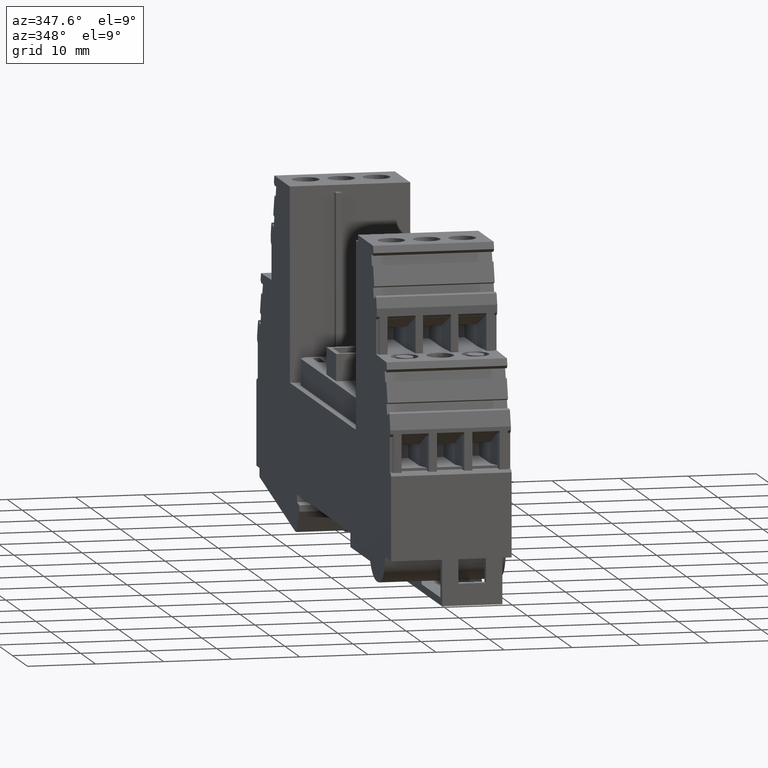
[diagram: clean part render]
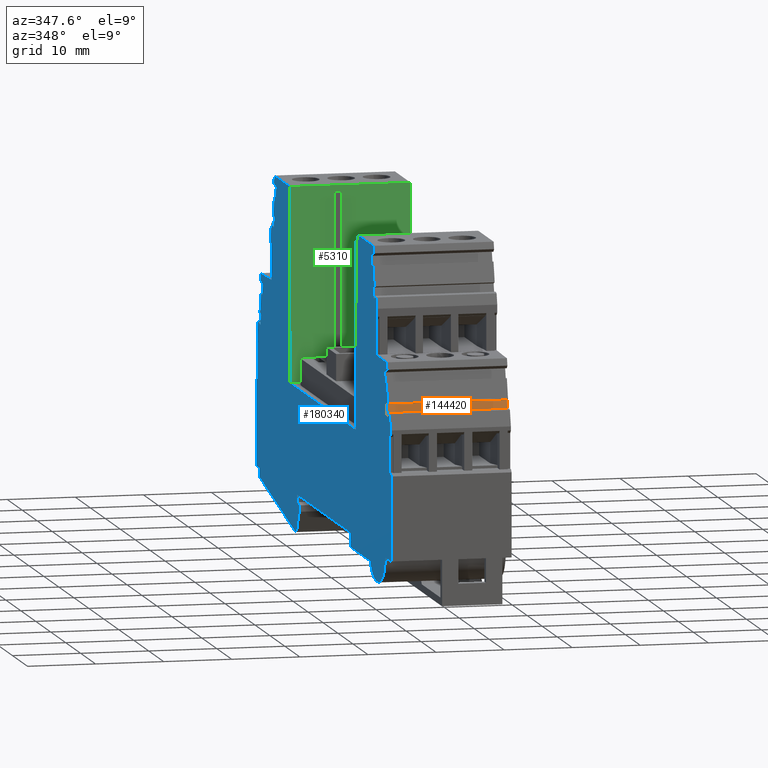
[diagram: same view with three faces highlighted in distinct colors, each labeled with its STEP entity id]
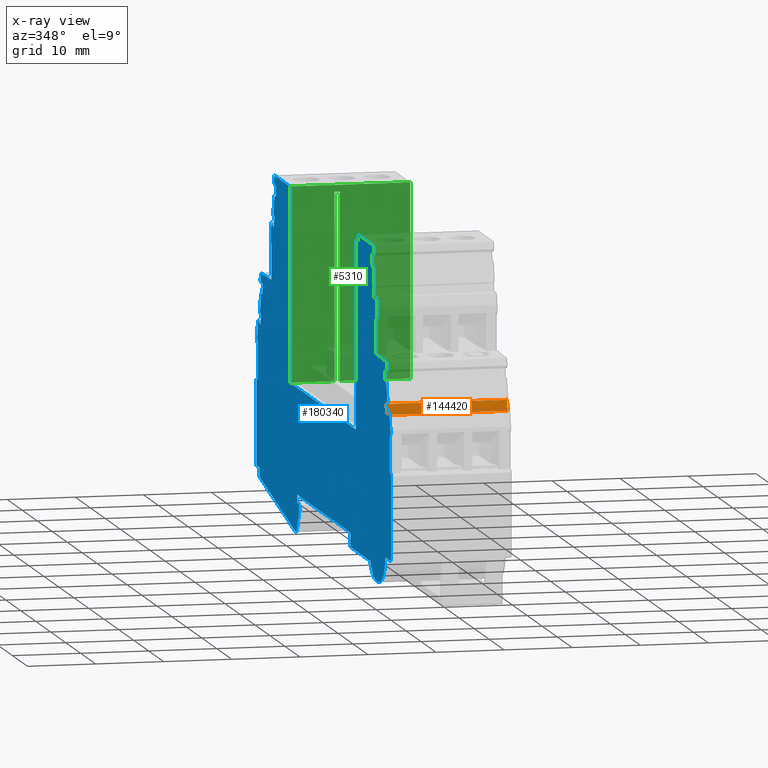
[diagram: x-ray of the same camera — body ghosted, the three highlighted faces saturated]
A machine part, auxiliary view with three faces highlighted in distinct colors.
The next image is the same camera in x-ray (body ghosted, the three faces saturated) — at least one of them is partly hidden behind the body in this view.
Their STEP definitions:

[orange] entity #144420 — the highlighted planar face has unit normal (0, 0.9646, -0.2639).
#103300=CARTESIAN_POINT('',(27.0221223307202,38.2103092298248,-31.3));
#103310=VERTEX_POINT('',#103300);
#103340=CARTESIAN_POINT('',(11.2617251630526,-19.3999999999998,-31.3));
#103350=DIRECTION('',(-0.263873049965258,-0.96455741845783,0.));
#103360=VECTOR('',#103350,1.);
#103370=LINE('',#103340,#103360);
#103380=CARTESIAN_POINT('',(27.443496850926,39.7505950584349,-31.3));
#103390=VERTEX_POINT('',#103380);
#103400=EDGE_CURVE('',#103390,#103310,#103370,.T.);
#105300=CARTESIAN_POINT('',(27.4434968509259,39.7505950584349,-49.));
#105310=VERTEX_POINT('',#105300);
#105430=CARTESIAN_POINT('',(27.4434968509259,39.7505950584348,
2.25000000009247));
#105440=DIRECTION('',(1.22464679914735E-16,7.51478429024817E-19,1.));
#105450=VECTOR('',#105440,1.);
#105460=LINE('',#105430,#105450);
#105470=EDGE_CURVE('',#105310,#103390,#105460,.T.);
#106060=CARTESIAN_POINT('',(27.0221223307201,38.2103092298248,-49.));
#106070=VERTEX_POINT('',#106060);
#106100=CARTESIAN_POINT('',(27.0221223307201,38.2103092298247,
2.25000000009247));
#106110=DIRECTION('',(1.22464679914735E-16,7.51478429024835E-19,1.));
#106120=VECTOR('',#106110,1.);
#106130=LINE('',#106100,#106120);
#106140=EDGE_CURVE('',#106070,#103310,#106130,.T.);
#144260=CARTESIAN_POINT('',(27.3467788102594,39.3970534457697,-49.));
#144270=DIRECTION('',(0.964557418457829,-0.263873049965258,
-1.17925920605772E-16));
#144280=DIRECTION('',(0.263873049965258,0.96455741845783,
-2.3740895734514E-21));
#144290=AXIS2_PLACEMENT_3D('',#144260,#144270,#144280);
#144300=PLANE('',#144290);
#144310=CARTESIAN_POINT('',(22.2644370800071,20.8191410000002,-49.));
#144320=DIRECTION('',(0.263873049965258,0.96455741845783,
-2.3740895734514E-21));
#144330=VECTOR('',#144320,1.);
#144340=LINE('',#144310,#144330);
#144350=EDGE_CURVE('',#106070,#105310,#144340,.T.);
#144360=ORIENTED_EDGE('',*,*,#144350,.F.);
#144370=ORIENTED_EDGE('',*,*,#105470,.F.);
#144380=ORIENTED_EDGE('',*,*,#103400,.F.);
#144390=ORIENTED_EDGE('',*,*,#106140,.T.);
#144400=EDGE_LOOP('',(#144390,#144380,#144370,#144360));
#144410=FACE_OUTER_BOUND('',#144400,.T.);
#144420=ADVANCED_FACE('',(#144410),#144300,.F.);

[blue] entity #180340 — the highlighted planar face has unit normal (-1, 0, 0).
#1220=CARTESIAN_POINT('',(37.1194199786441,54.8713243594611,-49.));
#1230=DIRECTION('',(0.967267752775637,0.25375794458572,
-8.70259500516748E-21));
#1240=VECTOR('',#1230,1.);
#1250=LINE('',#1220,#1240);
#1260=CARTESIAN_POINT('',(34.3699411001981,54.1500120786843,-49.));
#1270=VERTEX_POINT('',#1260);
#1280=CARTESIAN_POINT('',(34.9619005354865,54.3053097293563,-49.));
#1290=VERTEX_POINT('',#1280);
#1300=EDGE_CURVE('',#1270,#1290,#1250,.T.);
#1690=CARTESIAN_POINT('',(25.2516465941026,20.8191410000002,-49.));
#1700=DIRECTION('',(0.263873049965441,0.964557418457779,
-2.3740895734514E-21));
#1710=VECTOR('',#1700,1.);
#1720=LINE('',#1690,#1710);
#1730=CARTESIAN_POINT('',(33.9413512925595,52.5833516012792,-49.));
#1740=VERTEX_POINT('',#1730);
#1750=EDGE_CURVE('',#1740,#1270,#1720,.T.);
#2070=CARTESIAN_POINT('',(25.8011213998911,20.8191410000002,-49.));
#2080=DIRECTION('',(-0.263873049960418,-0.964557418459154,
2.37408957340826E-21));
#2090=VECTOR('',#2080,1.);
#2100=LINE('',#2070,#2090);
#2110=CARTESIAN_POINT('',(34.8900458929702,54.0426533932878,-49.));
#2120=VERTEX_POINT('',#2110);
#2130=EDGE_CURVE('',#1290,#2120,#2100,.T.);
#2450=CARTESIAN_POINT('',(26.9104384600794,20.8191410000002,-49.));
#2460=DIRECTION('',(0.263873049965295,0.964557418457819,
-2.3740895734514E-21));
#2470=VECTOR('',#2460,1.);
#2480=LINE('',#2450,#2470);
#2490=CARTESIAN_POINT('',(37.1697448515453,58.3208490729604,-49.));
#2500=VERTEX_POINT('',#2490);
#2510=CARTESIAN_POINT('',(37.5911193717511,59.8611349015705,-49.));
#2520=VERTEX_POINT('',#2510);
#2530=EDGE_CURVE('',#2500,#2520,#2480,.T.);
#2920=CARTESIAN_POINT('',(26.1328797729012,20.8191410000002,-49.));
#2930=DIRECTION('',(0.263873049965391,0.964557418457793,
-2.3740895734514E-21));
#2940=VECTOR('',#2930,1.);
#2950=LINE('',#2920,#2940);
#2960=CARTESIAN_POINT('',(35.6373932124443,55.5617907254851,-49.));
#2970=VERTEX_POINT('',#2960);
#2980=CARTESIAN_POINT('',(36.4290123623405,58.4554629808585,-49.));
#2990=VERTEX_POINT('',#2980);
#3000=EDGE_CURVE('',#2970,#2990,#2950,.T.);
#3390=CARTESIAN_POINT('',(26.9104384600803,20.8191410000002,-49.));
#3400=DIRECTION('',(0.263873049965258,0.96455741845783,
-2.3740895734514E-21));
#3410=VECTOR('',#3400,1.);
#3420=LINE('',#3390,#3410);
#3430=CARTESIAN_POINT('',(35.9221223307201,53.7603092298248,-49.));
#3440=VERTEX_POINT('',#3430);
#3450=CARTESIAN_POINT('',(36.3434968509261,55.3005950584348,-49.));
#3460=VERTEX_POINT('',#3450);
#3470=EDGE_CURVE('',#3440,#3460,#3420,.T.);
#3860=CARTESIAN_POINT('',(37.1194199786441,55.0135723780818,-49.));
#3870=DIRECTION('',(-0.937888934611864,0.346935651573346,
8.43827113469231E-21));
#3880=VECTOR('',#3870,1.);
#3890=LINE('',#3860,#3880);
#3900=EDGE_CURVE('',#3460,#2970,#3890,.T.);
#4150=CARTESIAN_POINT('',(37.1194199786441,58.3299946523759,-49.));
#4160=DIRECTION('',(0.983885037933486,-0.178802215116658,
-8.85210221492495E-21));
#4170=VECTOR('',#4160,1.);
#4180=LINE('',#4150,#4170);
#4190=EDGE_CURVE('',#2990,#2500,#4180,.T.);
#4440=CARTESIAN_POINT('',(37.1194199786441,59.9901772531652,-49.));
#4450=DIRECTION('',(-0.964557418457813,0.26387304996532,
8.67820988344551E-21));
#4460=VECTOR('',#4450,1.);
#4470=LINE('',#4440,#4460);
#4480=CARTESIAN_POINT('',(36.5590429340016,60.1434790650341,-49.));
#4490=VERTEX_POINT('',#4480);
#4500=EDGE_CURVE('',#2520,#4490,#4470,.T.);
#4990=CARTESIAN_POINT('',(91.941351295551,32.856274052444,-49.));
#5000=VERTEX_POINT('',#4990);
#5030=CARTESIAN_POINT('',(91.8993336040401,20.8191410000002,-49.));
#5040=DIRECTION('',(-0.00349065141522385,-0.99999390765779,
3.140570484076E-23));
#5050=VECTOR('',#5040,1.);
#5060=LINE('',#5030,#5050);
#5070=CARTESIAN_POINT('',(92.0408354669765,61.356274052444,-49.));
#5080=VERTEX_POINT('',#5070);
#5090=EDGE_CURVE('',#5080,#5000,#5060,.T.);
#5440=CARTESIAN_POINT('',(63.5407585981961,20.8191410000002,-49.));
#5450=DIRECTION('',(-0.703394702810296,-0.710799473873198,
6.32850543166678E-21));
#5460=VECTOR('',#5450,1.);
#5470=LINE('',#5440,#5460);
#5480=CARTESIAN_POINT('',(102.62598572191,60.3158258125998,-49.));
#5490=VERTEX_POINT('',#5480);
#5500=CARTESIAN_POINT('',(102.195514293636,59.8808227289656,-49.));
#5510=VERTEX_POINT('',#5500);
#5520=EDGE_CURVE('',#5490,#5510,#5470,.T.);
#6360=CARTESIAN_POINT('',(37.1194199786441,61.356274052444,-49.));
#6370=DIRECTION('',(1.,-1.20996962449382E-16,-8.99708997865547E-21));
#6380=VECTOR('',#6370,1.);
#6390=LINE('',#6360,#6380);
#6400=CARTESIAN_POINT('',(102.341351292559,61.3562740524441,-49.));
#6410=VERTEX_POINT('',#6400);
#6420=EDGE_CURVE('',#5080,#6410,#6390,.T.);
#13440=CARTESIAN_POINT('',(47.9413513179598,32.856274052444,-49.));
#13450=VERTEX_POINT('',#13440);
#13480=CARTESIAN_POINT('',(37.1194199786441,32.856274052444,-49.));
#13490=DIRECTION('',(-1.,1.20996962449382E-16,8.99708997865547E-21));
#13500=VECTOR('',#13490,1.);
#13510=LINE('',#13480,#13500);
#13520=EDGE_CURVE('',#5000,#13450,#13510,.T.);
#34570=CARTESIAN_POINT('',(46.6453578198244,60.356274052444,-49.));
#34580=VERTEX_POINT('',#34570);
#34610=CARTESIAN_POINT('',(37.1194199786441,60.356274052444,-49.));
#34620=DIRECTION('',(-1.,1.20996962449382E-16,8.99708997865547E-21));
#34630=VECTOR('',#34620,1.);
#34640=LINE('',#34610,#34630);
#34650=CARTESIAN_POINT('',(47.8453578192159,60.356274052444,-49.));
#34660=VERTEX_POINT('',#34650);
#34670=EDGE_CURVE('',#34660,#34580,#34640,.T.);
#35480=CARTESIAN_POINT('',(37.1194199786441,61.356274052444,-49.));
#35490=DIRECTION('',(1.,-1.20996962449382E-16,-8.99708997865547E-21));
#35500=VECTOR('',#35490,1.);
#35510=LINE('',#35480,#35500);
#35520=CARTESIAN_POINT('',(36.3413512925594,61.356274052444,-49.));
#35530=VERTEX_POINT('',#35520);
#35540=CARTESIAN_POINT('',(46.6418671471428,61.356274052444,-49.));
#35550=VERTEX_POINT('',#35540);
#35560=EDGE_CURVE('',#35530,#35550,#35510,.T.);
#41620=CARTESIAN_POINT('',(75.1419439869227,20.8191410000002,-49.));
#41630=DIRECTION('',(-0.703394702810296,0.710799473873198,
6.32850543170376E-21));
#41640=VECTOR('',#41630,1.);
#41650=LINE('',#41620,#41640);
#41660=CARTESIAN_POINT('',(36.4871882914824,59.8808227289657,-49.));
#41670=VERTEX_POINT('',#41660);
#41680=CARTESIAN_POINT('',(36.0567168632087,60.3158258125999,-49.));
#41690=VERTEX_POINT('',#41680);
#41700=EDGE_CURVE('',#41670,#41690,#41650,.T.);
#42090=CARTESIAN_POINT('',(25.2516465941056,20.8191410000002,-49.));
#42100=DIRECTION('',(0.26387304996536,0.964557418457802,
-2.3740895734514E-21));
#42110=VECTOR('',#42100,1.);
#42120=LINE('',#42090,#42110);
#42130=EDGE_CURVE('',#41690,#35530,#42120,.T.);
#42380=CARTESIAN_POINT('',(46.7833690100792,20.8191410000002,-49.));
#42390=DIRECTION('',(-0.00349065141522361,0.99999390765779,
3.14057048929527E-23));
#42400=VECTOR('',#42390,1.);
#42410=LINE('',#42380,#42400);
#42420=EDGE_CURVE('',#34580,#35550,#42410,.T.);
#43340=CARTESIAN_POINT('',(47.9833690094707,20.8191410000002,-49.));
#43350=DIRECTION('',(-0.00349065141522361,0.99999390765779,
3.14057048929527E-23));
#43360=VECTOR('',#43350,1.);
#43370=LINE('',#43340,#43360);
#43380=EDGE_CURVE('',#13450,#34660,#43370,.T.);
#43770=CARTESIAN_POINT('',(113.431055991013,20.8191410000002,-49.));
#43780=DIRECTION('',(0.26387304996536,-0.964557418457802,
-2.37408957350071E-21));
#43790=VECTOR('',#43780,1.);
#43800=LINE('',#43770,#43790);
#43810=EDGE_CURVE('',#6410,#5490,#43800,.T.);
#44060=CARTESIAN_POINT('',(112.881581185625,20.8191410000002,-49.));
#44070=DIRECTION('',(-0.26387304997026,0.964557418456461,
2.37408957355001E-21));
#44080=VECTOR('',#44070,1.);
#44090=LINE('',#44060,#44080);
#44100=CARTESIAN_POINT('',(102.123659651118,60.1434790650333,-49.));
#44110=VERTEX_POINT('',#44100);
#44120=EDGE_CURVE('',#5510,#44110,#44090,.T.);
#44440=CARTESIAN_POINT('',(111.772264125039,20.8191410000002,-49.));
#44450=DIRECTION('',(0.263873049965258,-0.96455741845783,
-2.37408957350071E-21));
#44460=VECTOR('',#44450,1.);
#44470=LINE('',#44440,#44460);
#44480=CARTESIAN_POINT('',(102.339205734193,55.3005950584348,-49.));
#44490=VERTEX_POINT('',#44480);
#44500=CARTESIAN_POINT('',(102.760580254399,53.7603092298247,-49.));
#44510=VERTEX_POINT('',#44500);
#44520=EDGE_CURVE('',#44490,#44510,#44470,.T.);
#44910=CARTESIAN_POINT('',(112.549822812218,20.8191410000002,-49.));
#44920=DIRECTION('',(0.263873049965391,-0.964557418457793,
-2.37408957350687E-21));
#44930=VECTOR('',#44920,1.);
#44940=LINE('',#44910,#44930);
#44950=CARTESIAN_POINT('',(102.253690222779,58.4554629808585,-49.));
#44960=VERTEX_POINT('',#44950);
#44970=CARTESIAN_POINT('',(103.045309372675,55.5617907254851,-49.));
#44980=VERTEX_POINT('',#44970);
#44990=EDGE_CURVE('',#44960,#44980,#44940,.T.);
#45380=CARTESIAN_POINT('',(111.772264125039,20.8191410000002,-49.));
#45390=DIRECTION('',(0.263873049965295,-0.964557418457819,
-2.37408957350071E-21));
#45400=VECTOR('',#45390,1.);
#45410=LINE('',#45380,#45400);
#45420=CARTESIAN_POINT('',(101.091583213368,59.8611349015706,-49.));
#45430=VERTEX_POINT('',#45420);
#45440=CARTESIAN_POINT('',(101.512957733574,58.3208490729604,-49.));
#45450=VERTEX_POINT('',#45440);
#45460=EDGE_CURVE('',#45430,#45450,#45410,.T.);
#45850=CARTESIAN_POINT('',(37.1194199786441,46.6185599376743,-49.));
#45860=DIRECTION('',(0.983885037933486,0.178802215116658,
-8.85210221492495E-21));
#45870=VECTOR('',#45860,1.);
#45880=LINE('',#45850,#45870);
#45890=EDGE_CURVE('',#45450,#44960,#45880,.T.);
#46140=CARTESIAN_POINT('',(37.1194199786441,31.175063738525,-49.));
#46150=DIRECTION('',(-0.937888934611864,-0.346935651573346,
8.43827113466766E-21));
#46160=VECTOR('',#46150,1.);
#46170=LINE('',#46140,#46160);
#46180=EDGE_CURVE('',#44980,#44490,#46170,.T.);
#46430=CARTESIAN_POINT('',(37.1194199786441,35.8029198263722,-49.));
#46440=DIRECTION('',(0.964557418457773,0.263873049965463,
-8.67820988342086E-21));
#46450=VECTOR('',#46440,1.);
#46460=LINE('',#46430,#46450);
#46470=CARTESIAN_POINT('',(103.792656692149,54.0426533932878,-49.));
#46480=VERTEX_POINT('',#46470);
#46490=EDGE_CURVE('',#44510,#46480,#46460,.T.);
#48320=CARTESIAN_POINT('',(104.277994216089,45.9062694805044,-49.));
#48330=VERTEX_POINT('',#48320);
#48360=CARTESIAN_POINT('',(8.89999997864408,47.7899600439844,-49.));
#48370=DIRECTION('',(-0.999805030924262,0.019745889155346,0.));
#48380=VECTOR('',#48370,1.);
#48390=LINE('',#48360,#48380);
#48400=CARTESIAN_POINT('',(109.341351675772,45.8062694884456,-49.));
#48410=VERTEX_POINT('',#48400);
#48420=EDGE_CURVE('',#48410,#48330,#48390,.T.);
#55280=CARTESIAN_POINT('',(111.241350077639,45.8062694884456,-49.));
#55290=VERTEX_POINT('',#55280);
#55390=CARTESIAN_POINT('',(8.89999997864408,45.8062694884456,-49.));
#55400=DIRECTION('',(-1.,1.18859577327523E-16,8.99708997865547E-21));
#55410=VECTOR('',#55400,1.);
#55420=LINE('',#55390,#55410);
#55430=EDGE_CURVE('',#55290,#48410,#55420,.T.);
#56570=CARTESIAN_POINT('',(104.730509391891,51.3969100594458,-49.));
#56580=VERTEX_POINT('',#56570);
#56610=CARTESIAN_POINT('',(129.782702606475,51.3969100594458,
-48.9999999999999));
#56620=DIRECTION('',(1.,2.46519032881566E-32,-8.99708997865547E-21));
#56630=VECTOR('',#56620,1.);
#56640=LINE('',#56610,#56630);
#56650=CARTESIAN_POINT('',(104.741351292559,51.3969100594458,-49.));
#56660=VERTEX_POINT('',#56650);
#56670=EDGE_CURVE('',#56580,#56660,#56640,.T.);
#62050=CARTESIAN_POINT('',(104.277994216089,50.9969054875639,-49.));
#62060=VERTEX_POINT('',#62050);
#62090=CARTESIAN_POINT('',(104.277994216089,-19.409363992998,
-48.9999999999999));
#62100=DIRECTION('',(2.46519032881566E-32,-1.,-2.60974393670053E-32));
#62110=VECTOR('',#62100,1.);
#62120=LINE('',#62090,#62110);
#62130=EDGE_CURVE('',#62060,#48330,#62120,.T.);
#71870=CARTESIAN_POINT('',(37.1194199786441,-6.9693864747734,-49.));
#71880=DIRECTION('',(0.756961995471646,0.65345890261866,
-6.81045518365729E-21));
#71890=VECTOR('',#71880,1.);
#71900=LINE('',#71870,#71890);
#71910=CARTESIAN_POINT('',(104.741351292559,51.4062694943389,-49.));
#71920=VERTEX_POINT('',#71910);
#71930=EDGE_CURVE('',#56580,#71920,#71900,.T.);
#72250=CARTESIAN_POINT('',(37.1194199786441,71.7778552291985,-49.));
#72260=DIRECTION('',(0.967267752775637,-0.25375794458572,
-8.70259500516748E-21));
#72270=VECTOR('',#72260,1.);
#72280=LINE('',#72250,#72270);
#72290=CARTESIAN_POINT('',(103.720802049632,54.3053097293565,-49.));
#72300=VERTEX_POINT('',#72290);
#72310=CARTESIAN_POINT('',(104.312761484921,54.1500120786843,-49.));
#72320=VERTEX_POINT('',#72310);
#72330=EDGE_CURVE('',#72300,#72320,#72280,.T.);
#72720=CARTESIAN_POINT('',(113.431055991016,20.8191410000002,-49.));
#72730=DIRECTION('',(0.263873049965441,-0.964557418457779,
-2.37408957350687E-21));
#72740=VECTOR('',#72730,1.);
#72750=LINE('',#72720,#72740);
#72760=CARTESIAN_POINT('',(104.635023547933,52.9720203754523,-49.));
#72770=VERTEX_POINT('',#72760);
#72780=EDGE_CURVE('',#72320,#72770,#72750,.T.);
#73100=CARTESIAN_POINT('',(101.741351292559,52.180401225556,-49.));
#73110=DIRECTION('',(8.99708997865547E-21,-2.60974393670053E-32,1.));
#73120=DIRECTION('',(1.,-1.20996962449382E-16,-8.99708997865547E-21));
#73130=AXIS2_PLACEMENT_3D('',#73100,#73110,#73120);
#73140=CIRCLE('',#73130,3.);
#73150=CARTESIAN_POINT('',(104.741351292559,52.180401225556,-49.));
#73160=VERTEX_POINT('',#73150);
#73170=EDGE_CURVE('',#73160,#72770,#73140,.T.);
#73500=CARTESIAN_POINT('',(104.741351292559,20.8191410000002,-49.));
#73510=DIRECTION('',(1.20996962449382E-16,1.,2.6096350746447E-32));
#73520=VECTOR('',#73510,1.);
#73530=LINE('',#73500,#73520);
#73540=EDGE_CURVE('',#71920,#73160,#73530,.T.);
#73760=CARTESIAN_POINT('',(129.782702606475,73.0144821659879,
-48.9999999999999));
#73770=DIRECTION('',(-0.756958310160381,-0.653463171631838,
8.32735372689133E-17));
#73780=VECTOR('',#73770,1.);
#73790=LINE('',#73760,#73780);
#73800=EDGE_CURVE('',#56660,#62060,#73790,.T.);
#74120=CARTESIAN_POINT('',(87.8287660893938,20.8191410000002,-49.));
#74130=DIRECTION('',(-0.703394702810296,-0.710799473873198,
6.32850543166678E-21));
#74140=VECTOR('',#74130,1.);
#74150=LINE('',#74120,#74140);
#74160=CARTESIAN_POINT('',(111.525986247668,44.7658263438923,-49.));
#74170=VERTEX_POINT('',#74160);
#74180=CARTESIAN_POINT('',(111.095514293636,44.3308227289657,-49.));
#74190=VERTEX_POINT('',#74180);
#74200=EDGE_CURVE('',#74170,#74190,#74150,.T.);
#74590=CARTESIAN_POINT('',(117.527582565612,20.8191410000002,-49.));
#74600=DIRECTION('',(-0.26387304997026,0.964557418456461,
2.37408957355001E-21));
#74610=VECTOR('',#74600,1.);
#74620=LINE('',#74590,#74610);
#74630=CARTESIAN_POINT('',(111.023659651118,44.5934790650334,-49.));
#74640=VERTEX_POINT('',#74630);
#74650=EDGE_CURVE('',#74190,#74640,#74620,.T.);
#74970=CARTESIAN_POINT('',(116.418265505112,20.8191410000002,-49.));
#74980=DIRECTION('',(0.263873049965258,-0.96455741845783,
-2.37408957350071E-21));
#74990=VECTOR('',#74980,1.);
#75000=LINE('',#74970,#74990);
#75010=CARTESIAN_POINT('',(111.239205734193,39.7505950584346,-49.));
#75020=VERTEX_POINT('',#75010);
#75030=CARTESIAN_POINT('',(111.660580254399,38.2103092298247,-49.));
#75040=VERTEX_POINT('',#75030);
#75050=EDGE_CURVE('',#75020,#75040,#75000,.T.);
#75440=CARTESIAN_POINT('',(117.195824192289,20.8191410000002,-49.));
#75450=DIRECTION('',(0.263873049965391,-0.964557418457793,
-2.37408957350687E-21));
#75460=VECTOR('',#75450,1.);
#75470=LINE('',#75440,#75460);
#75480=CARTESIAN_POINT('',(111.153690222778,42.9054629808585,-49.));
#75490=VERTEX_POINT('',#75480);
#75500=CARTESIAN_POINT('',(111.945309372675,40.0117907254848,-49.));
#75510=VERTEX_POINT('',#75500);
#75520=EDGE_CURVE('',#75490,#75510,#75470,.T.);
#75910=CARTESIAN_POINT('',(116.418265505112,20.8191410000002,-49.));
#75920=DIRECTION('',(0.263873049965295,-0.964557418457819,
-2.37408957350071E-21));
#75930=VECTOR('',#75920,1.);
#75940=LINE('',#75910,#75930);
#75950=CARTESIAN_POINT('',(109.991583213368,44.3111349015705,-49.));
#75960=VERTEX_POINT('',#75950);
#75970=CARTESIAN_POINT('',(110.412957733574,42.7708490729604,-49.));
#75980=VERTEX_POINT('',#75970);
#75990=EDGE_CURVE('',#75960,#75980,#75940,.T.);
#76380=CARTESIAN_POINT('',(37.1194199786441,29.4511558170865,-49.));
#76390=DIRECTION('',(0.983885037933486,0.178802215116658,
-8.85210221492495E-21));
#76400=VECTOR('',#76390,1.);
#76410=LINE('',#76380,#76400);
#76420=EDGE_CURVE('',#75980,#75490,#76410,.T.);
#76670=CARTESIAN_POINT('',(37.1194199786441,12.332853770955,-49.));
#76680=DIRECTION('',(-0.937888934611864,-0.346935651573346,
8.43827113466766E-21));
#76690=VECTOR('',#76680,1.);
#76700=LINE('',#76670,#76690);
#76710=EDGE_CURVE('',#75510,#75020,#76700,.T.);
#76960=CARTESIAN_POINT('',(37.1194199786441,17.8181553429394,-49.));
#76970=DIRECTION('',(0.964557418457773,0.263873049965463,
-8.67820988342086E-21));
#76980=VECTOR('',#76970,1.);
#76990=LINE('',#76960,#76980);
#77000=CARTESIAN_POINT('',(112.692656692149,38.4926533932878,-49.));
#77010=VERTEX_POINT('',#77000);
#77020=EDGE_CURVE('',#75040,#77010,#76990,.T.);
#77340=CARTESIAN_POINT('',(118.077057371086,20.8191410000002,-49.));
#77350=DIRECTION('',(0.263873049965441,-0.964557418457779,
-2.37408957350687E-21));
#77360=VECTOR('',#77350,1.);
#77370=LINE('',#77340,#77360);
#77380=CARTESIAN_POINT('',(113.212761484921,38.6000120786844,-49.));
#77390=VERTEX_POINT('',#77380);
#77400=CARTESIAN_POINT('',(113.841351292559,36.3022747303483,-49.));
#77410=VERTEX_POINT('',#77400);
#77420=EDGE_CURVE('',#77390,#77410,#77370,.T.);
#77810=CARTESIAN_POINT('',(37.1194199786441,58.5627265203504,-49.));
#77820=DIRECTION('',(0.967267752775637,-0.25375794458572,
-8.70259500516748E-21));
#77830=VECTOR('',#77820,1.);
#77840=LINE('',#77810,#77830);
#77850=CARTESIAN_POINT('',(112.620802049632,38.7553097293564,-49.));
#77860=VERTEX_POINT('',#77850);
#77870=EDGE_CURVE('',#77860,#77390,#77840,.T.);
#78190=CARTESIAN_POINT('',(113.841351292559,20.8191410000002,-49.));
#78200=DIRECTION('',(1.20996962449382E-16,1.,2.6096350746447E-32));
#78210=VECTOR('',#78200,1.);
#78220=LINE('',#78190,#78210);
#78230=CARTESIAN_POINT('',(113.841351292559,35.7062740684031,-49.));
#78240=VERTEX_POINT('',#78230);
#78250=EDGE_CURVE('',#78240,#77410,#78220,.T.);
#80600=CARTESIAN_POINT('',(113.441351276601,30.106274052444,-49.));
#80610=VERTEX_POINT('',#80600);
#80640=CARTESIAN_POINT('',(8.89999997864408,30.106274052444,-49.));
#80650=DIRECTION('',(-1.,1.20996962449382E-16,8.99708997865547E-21));
#80660=VECTOR('',#80650,1.);
#80670=LINE('',#80640,#80660);
#80680=CARTESIAN_POINT('',(113.94135129256,30.1062740524439,-49.));
#80690=VERTEX_POINT('',#80680);
#80700=EDGE_CURVE('',#80690,#80610,#80670,.T.);
#81940=CARTESIAN_POINT('',(113.441351276601,35.3062740684039,-49.));
#81950=VERTEX_POINT('',#81940);
#81980=CARTESIAN_POINT('',(113.441351276601,-19.3999999999998,-49.));
#81990=DIRECTION('',(2.46519032881566E-32,-1.,-1.44553607884872E-33));
#82000=VECTOR('',#81990,1.);
#82010=LINE('',#81980,#82000);
#82020=EDGE_CURVE('',#81950,#80610,#82010,.T.);
#82410=CARTESIAN_POINT('',(129.782702574557,51.6476253663592,-49.));
#82420=DIRECTION('',(-0.707106781186552,-0.707106781186543,
5.55175131345927E-17));
#82430=VECTOR('',#82420,1.);
#82440=LINE('',#82410,#82430);
#82450=EDGE_CURVE('',#78240,#81950,#82440,.T.);
#97420=CARTESIAN_POINT('',(114.341351239286,20.8191410000002,-49.));
#97430=DIRECTION('',(-1.20996962449382E-16,-1.,-2.6096350746447E-32));
#97440=VECTOR('',#97430,1.);
#97450=LINE('',#97420,#97440);
#97460=CARTESIAN_POINT('',(114.341351239286,29.7062741057179,-49.));
#97470=VERTEX_POINT('',#97460);
#97480=CARTESIAN_POINT('',(114.341351239286,17.3562740524431,-49.));
#97490=VERTEX_POINT('',#97480);
#97500=EDGE_CURVE('',#97470,#97490,#97450,.T.);
#97890=CARTESIAN_POINT('',(37.1194199786441,17.3562740524431,-49.));
#97900=DIRECTION('',(-1.,1.20996962449382E-16,8.99708997865547E-21));
#97910=VECTOR('',#97900,1.);
#97920=LINE('',#97890,#97910);
#97930=CARTESIAN_POINT('',(112.291351292559,17.3562740524431,-49.));
#97940=VERTEX_POINT('',#97930);
#97950=EDGE_CURVE('',#97490,#97940,#97920,.T.);
#98330=CARTESIAN_POINT('',(112.291351292559,16.0452605082471,-49.));
#98340=VERTEX_POINT('',#98330);
#98440=CARTESIAN_POINT('',(112.291351292559,11.3603930000001,-49.));
#98450=DIRECTION('',(-2.41993924898765E-16,-1.,-2.60952621258887E-32));
#98460=VECTOR('',#98450,1.);
#98470=LINE('',#98440,#98460);
#98480=EDGE_CURVE('',#97940,#98340,#98470,.T.);
#98800=CARTESIAN_POINT('',(8.89999997864408,-2.18542430030379,-49.));
#98810=DIRECTION('',(0.984807753012208,0.17364817766693,0.));
#98820=VECTOR('',#98810,1.);
#98830=LINE('',#98800,#98820);
#98840=CARTESIAN_POINT('',(88.5344285631325,11.8562740524429,-49.));
#98850=VERTEX_POINT('',#98840);
#98860=EDGE_CURVE('',#98850,#98340,#98830,.T.);
#99570=CARTESIAN_POINT('',(37.1194199786441,106.928205366359,-49.));
#99580=DIRECTION('',(0.707106781186552,-0.707106781186543,
-6.36190333486158E-21));
#99590=VECTOR('',#99580,1.);
#99600=LINE('',#99570,#99590);
#99610=EDGE_CURVE('',#80690,#97470,#99600,.T.);
#104190=CARTESIAN_POINT('',(37.1194199786441,42.0054127697338,-49.));
#104200=DIRECTION('',(-0.964557418457813,0.26387304996532,
8.67820988344551E-21));
#104210=VECTOR('',#104200,1.);
#104220=LINE('',#104190,#104210);
#104230=CARTESIAN_POINT('',(28.6911193717511,44.3111349015705,-49.));
#104240=VERTEX_POINT('',#104230);
#104250=CARTESIAN_POINT('',(27.6590429340013,44.5934790650334,-49.));
#104260=VERTEX_POINT('',#104250);
#104270=EDGE_CURVE('',#104240,#104260,#104220,.T.);
#104570=CARTESIAN_POINT('',(21.1551200195071,20.8191410000002,-49.));
#104580=DIRECTION('',(-0.263873049970261,-0.964557418456461,
2.37408957349454E-21));
#104590=VECTOR('',#104580,1.);
#104600=LINE('',#104570,#104590);
#104610=CARTESIAN_POINT('',(27.5871882914823,44.3308227289656,-49.));
#104620=VERTEX_POINT('',#104610);
#104630=EDGE_CURVE('',#104260,#104620,#104600,.T.);
#104880=CARTESIAN_POINT('',(37.1194199786441,41.1625905317882,-49.));
#104890=DIRECTION('',(0.983885037933486,-0.178802215116658,
-8.85210221492495E-21));
#104900=VECTOR('',#104890,1.);
#104910=LINE('',#104880,#104900);
#104920=CARTESIAN_POINT('',(27.5290123623404,42.9054629808585,-49.));
#104930=VERTEX_POINT('',#104920);
#104940=CARTESIAN_POINT('',(28.2697448515452,42.7708490729604,-49.));
#104950=VERTEX_POINT('',#104940);
#104960=EDGE_CURVE('',#104930,#104950,#104910,.T.);
#105260=CARTESIAN_POINT('',(37.1194199786441,36.1713624105118,-49.));
#105270=DIRECTION('',(-0.937888934611864,0.346935651573346,
8.43827113469231E-21));
#105280=VECTOR('',#105270,1.);
#105290=LINE('',#105260,#105280);
#105300=CARTESIAN_POINT('',(27.4434968509259,39.7505950584349,-49.));
#105310=VERTEX_POINT('',#105300);
#105320=CARTESIAN_POINT('',(26.7373932124442,40.0117907254851,-49.));
#105330=VERTEX_POINT('',#105320);
#105340=EDGE_CURVE('',#105310,#105330,#105290,.T.);
#105640=CARTESIAN_POINT('',(21.155120019734,20.8191410000002,-49.));
#105650=DIRECTION('',(-0.263873049960418,-0.964557418459154,
2.37408957340826E-21));
#105660=VECTOR('',#105650,1.);
#105670=LINE('',#105640,#105660);
#105680=CARTESIAN_POINT('',(26.0619005354865,38.7553097293563,-49.));
#105690=VERTEX_POINT('',#105680);
#105700=CARTESIAN_POINT('',(25.9900458929702,38.4926533932878,-49.));
#105710=VERTEX_POINT('',#105700);
#105720=EDGE_CURVE('',#105690,#105710,#105670,.T.);
#106020=CARTESIAN_POINT('',(37.1194199786441,35.4480011745647,-49.));
#106030=DIRECTION('',(0.964557418457773,-0.263873049965463,
-8.67820988344551E-21));
#106040=VECTOR('',#106030,1.);
#106050=LINE('',#106020,#106040);
#106060=CARTESIAN_POINT('',(27.0221223307201,38.2103092298248,-49.));
#106070=VERTEX_POINT('',#106060);
#106080=EDGE_CURVE('',#105710,#106070,#106050,.T.);
#106330=CARTESIAN_POINT('',(20.6056452140326,20.8191410000002,-49.));
#106340=DIRECTION('',(0.263873049965441,0.964557418457779,
-2.3740895734514E-21));
#106350=VECTOR('',#106340,1.);
#106360=LINE('',#106330,#106350);
#106370=CARTESIAN_POINT('',(24.8413512925594,36.302274730349,-49.));
#106380=VERTEX_POINT('',#106370);
#106390=CARTESIAN_POINT('',(25.469941100198,38.6000120786842,-49.));
#106400=VERTEX_POINT('',#106390);
#106410=EDGE_CURVE('',#106380,#106400,#106360,.T.);
#108650=CARTESIAN_POINT('',(28.1837813233102,17.3562740524431,-49.));
#108660=VERTEX_POINT('',#108650);
#108690=CARTESIAN_POINT('',(37.1194199786441,17.3562740524431,-49.));
#108700=DIRECTION('',(-1.,1.20996962449382E-16,8.99708997865547E-21));
#108710=VECTOR('',#108700,1.);
#108720=LINE('',#108690,#108710);
#108730=CARTESIAN_POINT('',(24.3413513139145,17.3562740524431,-49.));
#108740=VERTEX_POINT('',#108730);
#108750=EDGE_CURVE('',#108660,#108740,#108720,.T.);
#109070=CARTESIAN_POINT('',(33.1413512925593,13.006274052443,-49.));
#109080=VERTEX_POINT('',#109070);
#109110=CARTESIAN_POINT('',(33.1413512925593,18.006274052443,-49.));
#109120=DIRECTION('',(8.99708997865547E-21,-2.60974393670053E-32,1.));
#109130=DIRECTION('',(1.,-1.20996962449382E-16,-8.99708997865547E-21));
#109140=AXIS2_PLACEMENT_3D('',#109110,#109120,#109130);
#109150=CIRCLE('',#109140,5.);
#109160=EDGE_CURVE('',#108660,#109080,#109150,.T.);
#109390=CARTESIAN_POINT('',(34.1713512925586,13.006274052443,-49.));
#109400=VERTEX_POINT('',#109390);
#109430=CARTESIAN_POINT('',(8.89999997864408,13.006274052443,-49.));
#109440=DIRECTION('',(-1.,1.20996962449382E-16,8.99708997865547E-21));
#109450=VECTOR('',#109440,1.);
#109460=LINE('',#109430,#109450);
#109470=EDGE_CURVE('',#109400,#109080,#109460,.T.);
#109700=CARTESIAN_POINT('',(38.3471745646811,15.256274052443,-49.));
#109710=VERTEX_POINT('',#109700);
#109740=CARTESIAN_POINT('',(34.1713512925586,18.006274052443,-49.));
#109750=DIRECTION('',(8.99708997865547E-21,-2.60974393670053E-32,1.));
#109760=DIRECTION('',(1.,-1.20996962449382E-16,-8.99708997865547E-21));
#109770=AXIS2_PLACEMENT_3D('',#109740,#109750,#109760);
#109780=CIRCLE('',#109770,5.);
#109790=EDGE_CURVE('',#109400,#109710,#109780,.T.);
#113940=CARTESIAN_POINT('',(51.5413512925586,15.256274052443,-49.));
#113950=VERTEX_POINT('',#113940);
#113980=CARTESIAN_POINT('',(8.89999997864408,15.256274052443,-49.));
#113990=DIRECTION('',(-1.,5.43206665043069E-17,8.99708997865547E-21));
#114000=VECTOR('',#113990,1.);
#114010=LINE('',#113980,#114000);
#114020=EDGE_CURVE('',#113950,#109710,#114010,.T.);
#116130=CARTESIAN_POINT('',(87.2413512925595,17.356274052443,-49.));
#116140=VERTEX_POINT('',#116130);
#116170=CARTESIAN_POINT('',(8.89999997864408,17.356274052443,-49.));
#116180=DIRECTION('',(1.,-1.20996962449382E-16,-8.99708997865547E-21));
#116190=VECTOR('',#116180,1.);
#116200=LINE('',#116170,#116190);
#116210=CARTESIAN_POINT('',(51.5413512925586,17.356274052443,-49.));
#116220=VERTEX_POINT('',#116210);
#116230=EDGE_CURVE('',#116220,#116140,#116200,.T.);
#119640=CARTESIAN_POINT('',(85.7413512925594,15.0826553735049,-49.));
#119650=VERTEX_POINT('',#119640);
#119700=CARTESIAN_POINT('',(85.7413512925594,-19.3999999999998,-49.));
#119710=DIRECTION('',(1.95988511586443E-16,-1.,-2.46519032881566E-32));
#119720=VECTOR('',#119710,1.);
#119730=LINE('',#119700,#119720);
#119740=CARTESIAN_POINT('',(85.7413512925594,16.0164693586795,-49.));
#119750=VERTEX_POINT('',#119740);
#119760=EDGE_CURVE('',#119750,#119650,#119730,.T.);
#120080=CARTESIAN_POINT('',(37.1194199786441,6.29999656791292,-49.));
#120090=DIRECTION('',(-0.980611355912286,-0.195962671587904,
8.8226486032154E-21));
#120100=VECTOR('',#120090,1.);
#120110=LINE('',#120080,#120100);
#120120=CARTESIAN_POINT('',(86.9413512925594,16.2562740524429,-49.));
#120130=VERTEX_POINT('',#120120);
#120140=EDGE_CURVE('',#120130,#119750,#120110,.T.);
#120620=CARTESIAN_POINT('',(37.1194199786441,16.2562740524429,-49.));
#120630=DIRECTION('',(1.,-1.20996962449382E-16,-8.99708997865547E-21));
#120640=VECTOR('',#120630,1.);
#120650=LINE('',#120620,#120640);
#120660=CARTESIAN_POINT('',(87.2413512925595,16.2562740524429,-49.));
#120670=VERTEX_POINT('',#120660);
#120680=EDGE_CURVE('',#120130,#120670,#120650,.T.);
#121060=CARTESIAN_POINT('',(87.2413512925595,-19.3999999999998,-49.));
#121070=DIRECTION('',(1.20996962449382E-16,1.,2.46519032881566E-32));
#121080=VECTOR('',#121070,1.);
#121090=LINE('',#121060,#121080);
#121100=EDGE_CURVE('',#120670,#116140,#121090,.T.);
#123100=CARTESIAN_POINT('',(8.89999997864408,11.8562740524429,-49.));
#123110=DIRECTION('',(1.,-1.20996962449382E-16,-8.99708997865547E-21));
#123120=VECTOR('',#123110,1.);
#123130=LINE('',#123100,#123120);
#123140=CARTESIAN_POINT('',(87.589861353892,11.8562740524429,-49.));
#123150=VERTEX_POINT('',#123140);
#123160=EDGE_CURVE('',#123150,#98850,#123130,.T.);
#123400=CARTESIAN_POINT('',(105.49770649561,-19.3999999999998,-49.));
#123410=DIRECTION('',(0.497124633005974,-0.867679145340417,0.));
#123420=VECTOR('',#123410,1.);
#123430=LINE('',#123400,#123420);
#123440=EDGE_CURVE('',#119650,#123150,#123430,.T.);
#123660=CARTESIAN_POINT('',(51.5413512925586,-19.3999999999998,-49.));
#123670=DIRECTION('',(0.,-1.,-2.60974393670053E-32));
#123680=VECTOR('',#123670,1.);
#123690=LINE('',#123660,#123680);
#123700=EDGE_CURVE('',#116220,#113950,#123690,.T.);
#124920=CARTESIAN_POINT('',(24.8413512925594,35.706274052444,-49.));
#124930=VERTEX_POINT('',#124920);
#124960=CARTESIAN_POINT('',(24.8413512925594,20.8191410000002,-49.));
#124970=DIRECTION('',(-1.20996962449382E-16,-1.,-2.6096350746447E-32));
#124980=VECTOR('',#124970,1.);
#124990=LINE('',#124960,#124980);
#125000=EDGE_CURVE('',#106380,#124930,#124990,.T.);
#126170=CARTESIAN_POINT('',(37.1194199786441,30.106274052444,-49.));
#126180=DIRECTION('',(-1.,1.20996962449382E-16,8.99708997865547E-21));
#126190=VECTOR('',#126180,1.);
#126200=LINE('',#126170,#126190);
#126210=CARTESIAN_POINT('',(25.2413512765996,30.106274052444,-49.));
#126220=VERTEX_POINT('',#126210);
#126230=CARTESIAN_POINT('',(24.7413512925586,30.106274052444,-49.));
#126240=VERTEX_POINT('',#126230);
#126250=EDGE_CURVE('',#126220,#126240,#126200,.T.);
#127430=CARTESIAN_POINT('',(37.1194199786441,42.4843427385293,-49.));
#127440=DIRECTION('',(0.707106781186552,0.707106781186543,
-6.3619033348246E-21));
#127450=VECTOR('',#127440,1.);
#127460=LINE('',#127430,#127450);
#127470=CARTESIAN_POINT('',(24.3413513139145,29.7062740737999,-49.));
#127480=VERTEX_POINT('',#127470);
#127490=EDGE_CURVE('',#127480,#126240,#127460,.T.);
#127740=CARTESIAN_POINT('',(24.3413513139144,20.8191410000002,-49.));
#127750=DIRECTION('',(1.20996962449382E-16,1.,2.6096350746447E-32));
#127760=VECTOR('',#127750,1.);
#127770=LINE('',#127740,#127760);
#127780=EDGE_CURVE('',#108740,#127480,#127770,.T.);
#142930=CARTESIAN_POINT('',(25.2413512765996,20.8191410000002,-49.));
#142940=DIRECTION('',(-1.20996962449382E-16,-1.,-2.6096350746447E-32));
#142950=VECTOR('',#142940,1.);
#142960=LINE('',#142930,#142950);
#142970=CARTESIAN_POINT('',(25.2413512765996,35.3062740684038,-49.));
#142980=VERTEX_POINT('',#142970);
#142990=EDGE_CURVE('',#142980,#126220,#142960,.T.);
#143460=CARTESIAN_POINT('',(37.1194199786441,23.4282053663595,-49.));
#143470=DIRECTION('',(-0.707106781186552,0.707106781186543,
6.36190333486158E-21));
#143480=VECTOR('',#143470,1.);
#143490=LINE('',#143460,#143480);
#143500=EDGE_CURVE('',#142980,#124930,#143490,.T.);
#144070=CARTESIAN_POINT('',(37.1194199786441,41.656195650613,-49.));
#144080=DIRECTION('',(0.967267752775637,0.25375794458572,
-8.70259500516748E-21));
#144090=VECTOR('',#144080,1.);
#144100=LINE('',#144070,#144090);
#144110=EDGE_CURVE('',#106400,#105690,#144100,.T.);
#144310=CARTESIAN_POINT('',(22.2644370800071,20.8191410000002,-49.));
#144320=DIRECTION('',(0.263873049965258,0.96455741845783,
-2.3740895734514E-21));
#144330=VECTOR('',#144320,1.);
#144340=LINE('',#144310,#144330);
#144350=EDGE_CURVE('',#106070,#105310,#144340,.T.);
#144550=CARTESIAN_POINT('',(21.4868783928303,20.8191410000002,-49.));
#144560=DIRECTION('',(0.263873049965391,0.964557418457793,
-2.3740895734514E-21));
#144570=VECTOR('',#144560,1.);
#144580=LINE('',#144550,#144570);
#144590=EDGE_CURVE('',#105330,#104930,#144580,.T.);
#144790=CARTESIAN_POINT('',(22.2644370800068,20.8191410000002,-49.));
#144800=DIRECTION('',(0.263873049965295,0.964557418457819,
-2.3740895734514E-21));
#144810=VECTOR('',#144800,1.);
#144820=LINE('',#144790,#144810);
#144830=EDGE_CURVE('',#104950,#104240,#144820,.T.);
#145030=CARTESIAN_POINT('',(50.8539364957251,20.8191410000002,-49.));
#145040=DIRECTION('',(-0.703394702810296,0.710799473873198,
6.32850543170376E-21));
#145050=VECTOR('',#145040,1.);
#145060=LINE('',#145030,#145050);
#145070=CARTESIAN_POINT('',(27.1567163506827,44.7658263305211,-49.));
#145080=VERTEX_POINT('',#145070);
#145090=EDGE_CURVE('',#104620,#145080,#145060,.T.);
#145380=CARTESIAN_POINT('',(27.4413524476375,45.8062694963292,-49.));
#145390=VERTEX_POINT('',#145380);
#145440=CARTESIAN_POINT('',(9.60274419266641,-19.3999999999998,-49.));
#145450=DIRECTION('',(-0.263875685547591,-0.964556697440223,0.));
#145460=VECTOR('',#145450,1.);
#145470=LINE('',#145440,#145460);
#145480=EDGE_CURVE('',#145390,#145080,#145470,.T.);
#145650=CARTESIAN_POINT('',(8.89999997864408,45.8062694963292,-49.));
#145660=DIRECTION('',(-1.,1.20996962818096E-16,8.99708997865547E-21));
#145670=VECTOR('',#145660,1.);
#145680=LINE('',#145650,#145670);
#145690=CARTESIAN_POINT('',(29.3413513056026,45.8062694963292,-49.));
#145700=VERTEX_POINT('',#145690);
#145710=EDGE_CURVE('',#145700,#145390,#145680,.T.);
#148160=CARTESIAN_POINT('',(33.9413512925595,51.406274052444,-49.));
#148170=VERTEX_POINT('',#148160);
#148200=CARTESIAN_POINT('',(33.9413512925595,20.8191410000002,-49.));
#148210=DIRECTION('',(-1.20996962449382E-16,-1.,-2.6096350746447E-32));
#148220=VECTOR('',#148210,1.);
#148230=LINE('',#148200,#148220);
#148240=EDGE_CURVE('',#1740,#148170,#148230,.T.);
#154280=CARTESIAN_POINT('',(34.4047083690295,51.006269480562,-49.));
#154290=VERTEX_POINT('',#154280);
#154320=CARTESIAN_POINT('',(37.1194199786441,48.6627268644454,-49.));
#154330=DIRECTION('',(0.75695831016038,-0.653463171631838,
-6.81042202661318E-21));
#154340=VECTOR('',#154330,1.);
#154350=LINE('',#154320,#154340);
#154360=EDGE_CURVE('',#148170,#154290,#154350,.T.);
#154500=CARTESIAN_POINT('',(34.4047083690295,45.906269480562,-49.));
#154510=VERTEX_POINT('',#154500);
#154540=CARTESIAN_POINT('',(34.4047083690295,20.8191410000002,-49.));
#154550=DIRECTION('',(1.20996962449382E-16,1.,2.6096350746447E-32));
#154560=VECTOR('',#154550,1.);
#154570=LINE('',#154540,#154560);
#154580=EDGE_CURVE('',#154510,#154290,#154570,.T.);
#155820=CARTESIAN_POINT('',(37.1194199786441,45.9598843283315,-49.));
#155830=DIRECTION('',(-0.999805030924262,-0.0197458891553457,
8.99533582433184E-21));
#155840=VECTOR('',#155830,1.);
#155850=LINE('',#155820,#155840);
#155860=EDGE_CURVE('',#154510,#145700,#155850,.T.);
#172050=CARTESIAN_POINT('',(117.527582565385,20.8191410000002,-49.));
#172060=DIRECTION('',(-0.263873049960418,0.964557418459154,
2.37408957345756E-21));
#172070=VECTOR('',#172060,1.);
#172080=LINE('',#172050,#172070);
#172090=EDGE_CURVE('',#77010,#77860,#172080,.T.);
#172290=CARTESIAN_POINT('',(37.1194199786441,24.3755669381188,-49.));
#172300=DIRECTION('',(-0.964557418457813,-0.26387304996532,
8.67820988342086E-21));
#172310=VECTOR('',#172300,1.);
#172320=LINE('',#172290,#172310);
#172330=EDGE_CURVE('',#74640,#75960,#172320,.T.);
#172530=CARTESIAN_POINT('',(129.079963274521,-19.3999999999998,-49.));
#172540=DIRECTION('',(0.263875753589783,-0.964556678825783,0.));
#172550=VECTOR('',#172540,1.);
#172560=LINE('',#172530,#172550);
#172570=EDGE_CURVE('',#55290,#74170,#172560,.T.);
#172770=CARTESIAN_POINT('',(112.881581185228,20.8191410000002,-49.));
#172780=DIRECTION('',(-0.263873049960418,0.964557418459154,
2.37408957345756E-21));
#172790=VECTOR('',#172780,1.);
#172800=LINE('',#172770,#172790);
#172810=EDGE_CURVE('',#46480,#72300,#172800,.T.);
#173010=CARTESIAN_POINT('',(37.1194199786441,42.3603314215502,-49.));
#173020=DIRECTION('',(-0.964557418457813,-0.26387304996532,
8.67820988342086E-21));
#173030=VECTOR('',#173020,1.);
#173040=LINE('',#173010,#173030);
#173050=EDGE_CURVE('',#44110,#45430,#173040,.T.);
#173250=CARTESIAN_POINT('',(25.8011213994937,20.8191410000002,-49.));
#173260=DIRECTION('',(-0.263873049970261,-0.964557418456461,
2.37408957349454E-21));
#173270=VECTOR('',#173260,1.);
#173280=LINE('',#173250,#173270);
#173290=EDGE_CURVE('',#4490,#41670,#173280,.T.);
#173490=CARTESIAN_POINT('',(37.1194199786441,53.4327656579975,-49.));
#173500=DIRECTION('',(0.964557418457773,-0.263873049965463,
-8.67820988344551E-21));
#173510=VECTOR('',#173500,1.);
#173520=LINE('',#173490,#173510);
#173530=EDGE_CURVE('',#2120,#3440,#173520,.T.);
#179270=CARTESIAN_POINT('',(69.9413513067554,27.3562740524436,-49.));
#179280=DIRECTION('',(-8.99708997865547E-21,2.60974393670053E-32,-1.));
#179290=DIRECTION('',(-1.,1.20996962449382E-16,8.99708997865547E-21));
#179300=AXIS2_PLACEMENT_3D('',#179270,#179280,#179290);
#179310=PLANE('',#179300);
#179320=ORIENTED_EDGE('',*,*,#145480,.F.);
#179330=ORIENTED_EDGE('',*,*,#145090,.T.);
#179340=ORIENTED_EDGE('',*,*,#104630,.T.);
#179350=ORIENTED_EDGE('',*,*,#104270,.T.);
#179360=ORIENTED_EDGE('',*,*,#144830,.T.);
#179370=ORIENTED_EDGE('',*,*,#104960,.T.);
#179380=ORIENTED_EDGE('',*,*,#144590,.T.);
#179390=ORIENTED_EDGE('',*,*,#105340,.T.);
#179400=ORIENTED_EDGE('',*,*,#144350,.T.);
#179410=ORIENTED_EDGE('',*,*,#106080,.T.);
#179420=ORIENTED_EDGE('',*,*,#105720,.T.);
#179430=ORIENTED_EDGE('',*,*,#144110,.T.);
#179440=ORIENTED_EDGE('',*,*,#106410,.T.);
#179450=ORIENTED_EDGE('',*,*,#125000,.F.);
#179460=ORIENTED_EDGE('',*,*,#143500,.T.);
#179470=ORIENTED_EDGE('',*,*,#142990,.F.);
#179480=ORIENTED_EDGE('',*,*,#126250,.F.);
#179490=ORIENTED_EDGE('',*,*,#127490,.T.);
#179500=ORIENTED_EDGE('',*,*,#127780,.T.);
#179510=ORIENTED_EDGE('',*,*,#108750,.T.);
#179520=ORIENTED_EDGE('',*,*,#109160,.F.);
#179530=ORIENTED_EDGE('',*,*,#109470,.T.);
#179540=ORIENTED_EDGE('',*,*,#109790,.F.);
#179550=ORIENTED_EDGE('',*,*,#114020,.T.);
#179560=ORIENTED_EDGE('',*,*,#123700,.T.);
#179570=ORIENTED_EDGE('',*,*,#116230,.F.);
#179580=ORIENTED_EDGE('',*,*,#121100,.T.);
#179590=ORIENTED_EDGE('',*,*,#120680,.T.);
#179600=ORIENTED_EDGE('',*,*,#120140,.F.);
#179610=ORIENTED_EDGE('',*,*,#119760,.F.);
#179620=ORIENTED_EDGE('',*,*,#123440,.F.);
#179630=ORIENTED_EDGE('',*,*,#123160,.F.);
#179640=ORIENTED_EDGE('',*,*,#98860,.F.);
#179650=ORIENTED_EDGE('',*,*,#98480,.T.);
#179660=ORIENTED_EDGE('',*,*,#97950,.T.);
#179670=ORIENTED_EDGE('',*,*,#97500,.T.);
#179680=ORIENTED_EDGE('',*,*,#99610,.T.);
#179690=ORIENTED_EDGE('',*,*,#80700,.F.);
#179700=ORIENTED_EDGE('',*,*,#82020,.T.);
#179710=ORIENTED_EDGE('',*,*,#82450,.T.);
#179720=ORIENTED_EDGE('',*,*,#78250,.F.);
#179730=ORIENTED_EDGE('',*,*,#77420,.T.);
#179740=ORIENTED_EDGE('',*,*,#77870,.T.);
#179750=ORIENTED_EDGE('',*,*,#172090,.T.);
#179760=ORIENTED_EDGE('',*,*,#77020,.T.);
#179770=ORIENTED_EDGE('',*,*,#75050,.T.);
#179780=ORIENTED_EDGE('',*,*,#76710,.T.);
#179790=ORIENTED_EDGE('',*,*,#75520,.T.);
#179800=ORIENTED_EDGE('',*,*,#76420,.T.);
#179810=ORIENTED_EDGE('',*,*,#75990,.T.);
#179820=ORIENTED_EDGE('',*,*,#172330,.T.);
#179830=ORIENTED_EDGE('',*,*,#74650,.T.);
#179840=ORIENTED_EDGE('',*,*,#74200,.T.);
#179850=ORIENTED_EDGE('',*,*,#172570,.T.);
#179860=ORIENTED_EDGE('',*,*,#55430,.F.);
#179870=ORIENTED_EDGE('',*,*,#48420,.F.);
#179880=ORIENTED_EDGE('',*,*,#62130,.T.);
#179890=ORIENTED_EDGE('',*,*,#73800,.T.);
#179900=ORIENTED_EDGE('',*,*,#56670,.T.);
#179910=ORIENTED_EDGE('',*,*,#71930,.F.);
#179920=ORIENTED_EDGE('',*,*,#73540,.F.);
#179930=ORIENTED_EDGE('',*,*,#73170,.F.);
#179940=ORIENTED_EDGE('',*,*,#72780,.T.);
#179950=ORIENTED_EDGE('',*,*,#72330,.T.);
#179960=ORIENTED_EDGE('',*,*,#172810,.T.);
#179970=ORIENTED_EDGE('',*,*,#46490,.T.);
#179980=ORIENTED_EDGE('',*,*,#44520,.T.);
#179990=ORIENTED_EDGE('',*,*,#46180,.T.);
#180000=ORIENTED_EDGE('',*,*,#44990,.T.);
#180010=ORIENTED_EDGE('',*,*,#45890,.T.);
#180020=ORIENTED_EDGE('',*,*,#45460,.T.);
#180030=ORIENTED_EDGE('',*,*,#173050,.T.);
#180040=ORIENTED_EDGE('',*,*,#44120,.T.);
#180050=ORIENTED_EDGE('',*,*,#5520,.T.);
#180060=ORIENTED_EDGE('',*,*,#43810,.T.);
#180070=ORIENTED_EDGE('',*,*,#6420,.T.);
#180080=ORIENTED_EDGE('',*,*,#5090,.F.);
#180090=ORIENTED_EDGE('',*,*,#13520,.F.);
#180100=ORIENTED_EDGE('',*,*,#43380,.F.);
#180110=ORIENTED_EDGE('',*,*,#34670,.F.);
#180120=ORIENTED_EDGE('',*,*,#42420,.F.);
#180130=ORIENTED_EDGE('',*,*,#35560,.T.);
#180140=ORIENTED_EDGE('',*,*,#42130,.T.);
#180150=ORIENTED_EDGE('',*,*,#41700,.T.);
#180160=ORIENTED_EDGE('',*,*,#173290,.T.);
#180170=ORIENTED_EDGE('',*,*,#4500,.T.);
#180180=ORIENTED_EDGE('',*,*,#2530,.T.);
#180190=ORIENTED_EDGE('',*,*,#4190,.T.);
#180200=ORIENTED_EDGE('',*,*,#3000,.T.);
#180210=ORIENTED_EDGE('',*,*,#3900,.T.);
#180220=ORIENTED_EDGE('',*,*,#3470,.T.);
#180230=ORIENTED_EDGE('',*,*,#173530,.T.);
#180240=ORIENTED_EDGE('',*,*,#2130,.T.);
#180250=ORIENTED_EDGE('',*,*,#1300,.T.);
#180260=ORIENTED_EDGE('',*,*,#1750,.T.);
#180270=ORIENTED_EDGE('',*,*,#148240,.F.);
#180280=ORIENTED_EDGE('',*,*,#154360,.F.);
#180290=ORIENTED_EDGE('',*,*,#154580,.T.);
#180300=ORIENTED_EDGE('',*,*,#155860,.F.);
#180310=ORIENTED_EDGE('',*,*,#145710,.F.);
#180320=EDGE_LOOP('',(#180310,#180300,#180290,#180280,#180270,#180260,
#180250,#180240,#180230,#180220,#180210,#180200,#180190,#180180,#180170,
#180160,#180150,#180140,#180130,#180120,#180110,#180100,#180090,#180080,
#180070,#180060,#180050,#180040,#180030,#180020,#180010,#180000,#179990,
#179980,#179970,#179960,#179950,#179940,#179930,#179920,#179910,#179900,
#179890,#179880,#179870,#179860,#179850,#179840,#179830,#179820,#179810,
#179800,#179790,#179780,#179770,#179760,#179750,#179740,#179730,#179720,
#179710,#179700,#179690,#179680,#179670,#179660,#179650,#179640,#179630,
#179620,#179610,#179600,#179590,#179580,#179570,#179560,#179550,#179540,
#179530,#179520,#179510,#179500,#179490,#179480,#179470,#179460,#179450,
#179440,#179430,#179420,#179410,#179400,#179390,#179380,#179370,#179360,
#179350,#179340,#179330,#179320));
#180330=FACE_OUTER_BOUND('',#180320,.T.);
#180340=ADVANCED_FACE('',(#180330),#179310,.T.);

[green] entity #5310 — the highlighted planar face has unit normal (0, 1, -0.0035).
#570=CARTESIAN_POINT('',(91.9413512955509,32.856274052444,-42.45));
#580=VERTEX_POINT('',#570);
#660=CARTESIAN_POINT('',(91.9413512955509,32.856274052444,-41.65));
#670=VERTEX_POINT('',#660);
#880=CARTESIAN_POINT('',(92.0373447942949,60.356274052444,-41.65));
#890=VERTEX_POINT('',#880);
#970=CARTESIAN_POINT('',(92.0373447942949,60.356274052444,-42.45));
#980=VERTEX_POINT('',#970);
#1010=CARTESIAN_POINT('',(92.0373447942949,60.356274052444,
2.25000000009247));
#1020=DIRECTION('',(1.22460564592543E-16,-4.2746974739604E-19,1.));
#1030=VECTOR('',#1020,1.);
#1040=LINE('',#1010,#1030);
#1050=EDGE_CURVE('',#980,#890,#1040,.T.);
#4770=CARTESIAN_POINT('',(92.0390962229964,60.8580193781516,-49.));
#4780=DIRECTION('',(0.99999390765779,-0.00349065141522385,
-1.22461310668755E-16));
#4790=DIRECTION('',(0.00349065141522385,0.99999390765779,
-3.140570484076E-23));
#4800=AXIS2_PLACEMENT_3D('',#4770,#4780,#4790);
#4810=PLANE('',#4800);
#4820=CARTESIAN_POINT('',(91.7589417472741,-19.3999999999998,-41.65));
#4830=DIRECTION('',(-0.00349065141522385,-0.99999390765779,
4.33680868994202E-19));
#4840=VECTOR('',#4830,1.);
#4850=LINE('',#4820,#4840);
#4860=EDGE_CURVE('',#890,#670,#4850,.T.);
#4870=ORIENTED_EDGE('',*,*,#4860,.T.);
#4880=ORIENTED_EDGE('',*,*,#1050,.T.);
#4890=CARTESIAN_POINT('',(91.7589417472741,-19.3999999999998,-42.45));
#4900=DIRECTION('',(0.00349065141522385,0.99999390765779,
-4.33680868994202E-19));
#4910=VECTOR('',#4900,1.);
#4920=LINE('',#4890,#4910);
#4930=EDGE_CURVE('',#580,#980,#4920,.T.);
#4940=ORIENTED_EDGE('',*,*,#4930,.T.);
#4950=CARTESIAN_POINT('',(91.941351295551,32.856274052444,
2.25000000009247));
#4960=DIRECTION('',(1.22464679914735E-16,7.51478429024826E-19,1.));
#4970=VECTOR('',#4960,1.);
#4980=LINE('',#4950,#4970);
#4990=CARTESIAN_POINT('',(91.941351295551,32.856274052444,-49.));
#5000=VERTEX_POINT('',#4990);
#5010=EDGE_CURVE('',#5000,#580,#4980,.T.);
#5020=ORIENTED_EDGE('',*,*,#5010,.T.);
#5030=CARTESIAN_POINT('',(91.8993336040401,20.8191410000002,-49.));
#5040=DIRECTION('',(-0.00349065141522385,-0.99999390765779,
3.140570484076E-23));
#5050=VECTOR('',#5040,1.);
#5060=LINE('',#5030,#5050);
#5070=CARTESIAN_POINT('',(92.0408354669765,61.356274052444,-49.));
#5080=VERTEX_POINT('',#5070);
#5090=EDGE_CURVE('',#5080,#5000,#5060,.T.);
#5100=ORIENTED_EDGE('',*,*,#5090,.T.);
#5110=CARTESIAN_POINT('',(92.0408354669765,61.356274052444,
2.25000000009247));
#5120=DIRECTION('',(-1.22464679914735E-16,-7.51478429024826E-19,-1.));
#5130=VECTOR('',#5120,1.);
#5140=LINE('',#5110,#5130);
#5150=CARTESIAN_POINT('',(92.0408354669765,61.356274052444,-31.3));
#5160=VERTEX_POINT('',#5150);
#5170=EDGE_CURVE('',#5160,#5080,#5140,.T.);
#5180=ORIENTED_EDGE('',*,*,#5170,.T.);
#5190=CARTESIAN_POINT('',(91.7589417472741,-19.3999999999998,-31.3));
#5200=DIRECTION('',(-0.00349065141522385,-0.99999390765779,0.));
#5210=VECTOR('',#5200,1.);
#5220=LINE('',#5190,#5210);
#5230=CARTESIAN_POINT('',(91.941351295551,32.856274052444,-31.3));
#5240=VERTEX_POINT('',#5230);
#5250=EDGE_CURVE('',#5160,#5240,#5220,.T.);
#5260=ORIENTED_EDGE('',*,*,#5250,.F.);
#5270=EDGE_CURVE('',#670,#5240,#4980,.T.);
#5280=ORIENTED_EDGE('',*,*,#5270,.T.);
#5290=EDGE_LOOP('',(#5280,#5260,#5180,#5100,#5020,#4940,#4880,#4870));
#5300=FACE_OUTER_BOUND('',#5290,.T.);
#5310=ADVANCED_FACE('',(#5300),#4810,.F.);